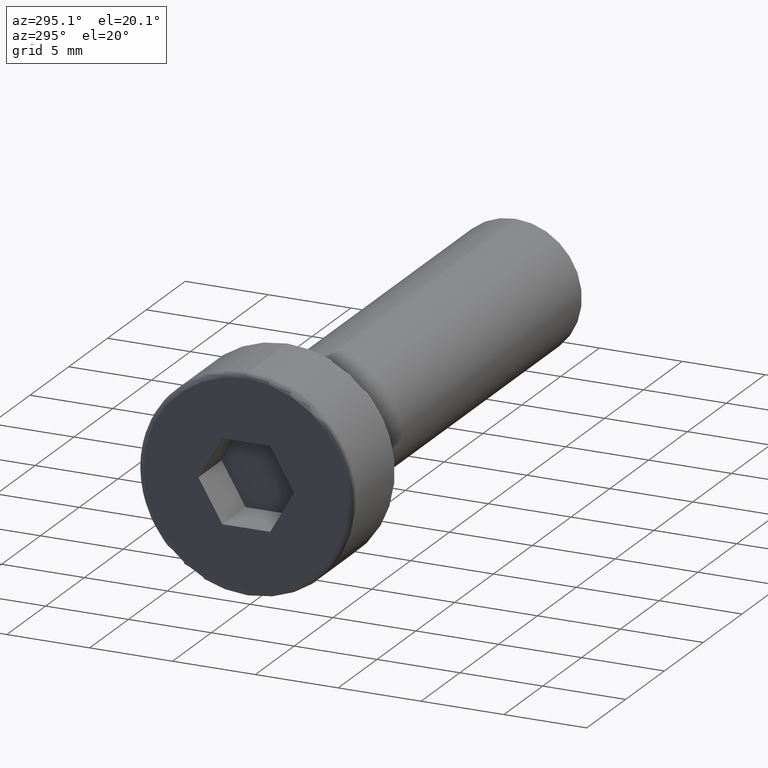
[diagram: clean part render]
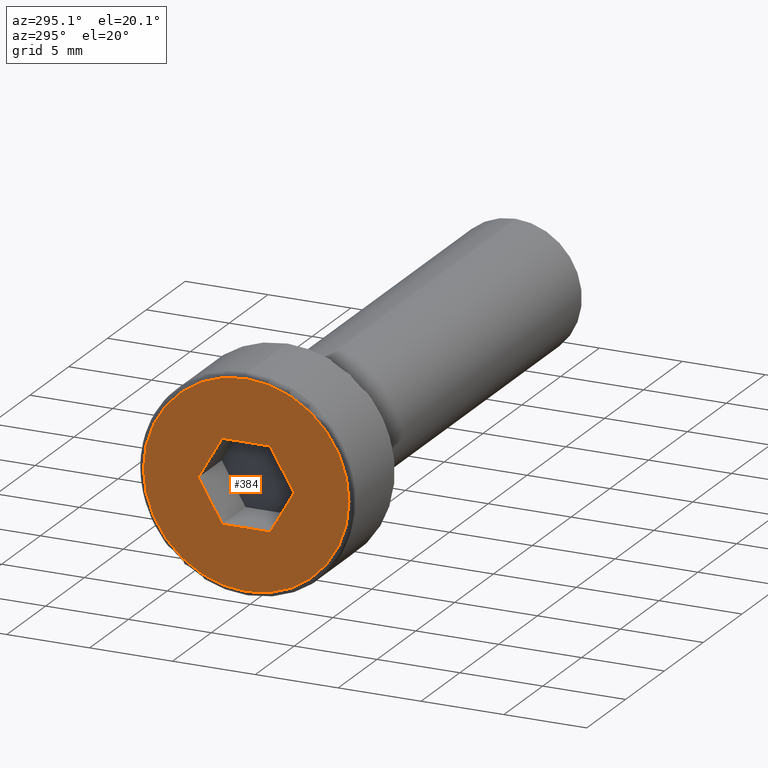
[diagram: same view with one face highlighted and labeled with its STEP entity id]
A machine part, auxiliary view. The second image highlights one B-rep face of the part: STEP entity #384.
In plain terms, the highlighted planar face has unit normal (1, 0, 0).
Its self-contained STEP definition (entity closure, byte-faithful):
#17 = VERTEX_POINT ( 'NONE', #584 ) ;
#23 = ORIENTED_EDGE ( 'NONE', *, *, #220, .T. ) ;
#44 = AXIS2_PLACEMENT_3D ( 'NONE', #458, #88, #518 ) ;
#58 = ORIENTED_EDGE ( 'NONE', *, *, #469, .F. ) ;
#87 = CIRCLE ( 'NONE', #44, 6.199999999999999300 ) ;
#88 = DIRECTION ( 'NONE',  ( -1.000000000000000000, -0.0000000000000000000, -0.0000000000000000000 ) ) ;
#97 = VERTEX_POINT ( 'NONE', #227 ) ;
#107 = VECTOR ( 'NONE', #303, 1000.000000000000100 ) ;
#123 = ORIENTED_EDGE ( 'NONE', *, *, #719, .T. ) ;
#158 = AXIS2_PLACEMENT_3D ( 'NONE', #538, #808, #437 ) ;
#165 = DIRECTION ( 'NONE',  ( -0.0000000000000000000, 1.000000000000000000, -0.0000000000000000000 ) ) ;
#169 = DIRECTION ( 'NONE',  ( -0.0000000000000000000, 0.5000000000000004400, 0.8660254037844382600 ) ) ;
#175 = VECTOR ( 'NONE', #226, 1000.000000000000100 ) ;
#179 = FACE_OUTER_BOUND ( 'NONE', #512, .T. ) ;
#186 = DIRECTION ( 'NONE',  ( 0.0000000000000000000, 0.0000000000000000000, -1.000000000000000000 ) ) ;
#187 = LINE ( 'NONE', #783, #175 ) ;
#205 = VERTEX_POINT ( 'NONE', #383 ) ;
#220 = EDGE_CURVE ( 'NONE', #97, #243, #87, .T. ) ;
#226 = DIRECTION ( 'NONE',  ( -0.0000000000000000000, -0.5000000000000007800, -0.8660254037844381500 ) ) ;
#227 = CARTESIAN_POINT ( 'NONE',  ( -5.500000000000000000, 7.776507174585691200E-016, 6.199999999999999300 ) ) ;
#243 = VERTEX_POINT ( 'NONE', #639 ) ;
#244 = CARTESIAN_POINT ( 'NONE',  ( -5.500000000000000000, 0.0000000000000000000, 0.0000000000000000000 ) ) ;
#287 = LINE ( 'NONE', #422, #769 ) ;
#300 = CARTESIAN_POINT ( 'NONE',  ( -5.500000000000000000, -1.443375672974072800, -2.500000000000013300 ) ) ;
#301 = AXIS2_PLACEMENT_3D ( 'NONE', #244, #320, #186 ) ;
#303 = DIRECTION ( 'NONE',  ( -0.0000000000000000000, -0.4999999999999997200, 0.8660254037844387100 ) ) ;
#308 = EDGE_CURVE ( 'NONE', #733, #535, #517, .T. ) ;
#320 = DIRECTION ( 'NONE',  ( -1.000000000000000000, -0.0000000000000000000, -0.0000000000000000000 ) ) ;
#331 = CARTESIAN_POINT ( 'NONE',  ( -5.500000000000000000, 1.443375672974072300, -2.500000000000013300 ) ) ;
#334 = CARTESIAN_POINT ( 'NONE',  ( -5.500000000000000000, 2.886751345948146900, -8.673617379884035500E-016 ) ) ;
#348 = VECTOR ( 'NONE', #510, 1000.000000000000200 ) ;
#349 = VECTOR ( 'NONE', #540, 1000.000000000000000 ) ;
#351 = ORIENTED_EDGE ( 'NONE', *, *, #770, .F. ) ;
#355 = CARTESIAN_POINT ( 'NONE',  ( -5.500000000000000000, -2.886751345948144600, 8.673617379884035500E-016 ) ) ;
#363 = LINE ( 'NONE', #334, #348 ) ;
#373 = ORIENTED_EDGE ( 'NONE', *, *, #436, .F. ) ;
#382 = CARTESIAN_POINT ( 'NONE',  ( -5.500000000000000000, -1.443375672974071000, 2.500000000000013300 ) ) ;
#383 = CARTESIAN_POINT ( 'NONE',  ( -5.500000000000000000, 2.886751345948146900, -8.673617379884035500E-016 ) ) ;
#384 = ADVANCED_FACE ( 'NONE', ( #479, #179 ), #734, .F. ) ;
#421 = EDGE_LOOP ( 'NONE', ( #373, #608, #457, #622, #351, #58 ) ) ;
#422 = CARTESIAN_POINT ( 'NONE',  ( -5.500000000000000000, -1.443375672974071000, 2.500000000000013300 ) ) ;
#436 = EDGE_CURVE ( 'NONE', #632, #673, #287, .T. ) ;
#437 = DIRECTION ( 'NONE',  ( 0.0000000000000000000, 0.0000000000000000000, -1.000000000000000000 ) ) ;
#439 = LINE ( 'NONE', #355, #107 ) ;
#455 = EDGE_CURVE ( 'NONE', #535, #632, #439, .T. ) ;
#457 = ORIENTED_EDGE ( 'NONE', *, *, #308, .F. ) ;
#458 = CARTESIAN_POINT ( 'NONE',  ( -5.500000000000000000, 0.0000000000000000000, 0.0000000000000000000 ) ) ;
#469 = EDGE_CURVE ( 'NONE', #673, #17, #620, .T. ) ;
#470 = CARTESIAN_POINT ( 'NONE',  ( -5.500000000000000000, -2.886751345948144600, 1.084202172485504400E-015 ) ) ;
#479 = FACE_BOUND ( 'NONE', #421, .T. ) ;
#510 = DIRECTION ( 'NONE',  ( -0.0000000000000000000, 0.5000000000000000000, -0.8660254037844386000 ) ) ;
#512 = EDGE_LOOP ( 'NONE', ( #123, #23 ) ) ;
#517 = LINE ( 'NONE', #595, #349 ) ;
#518 = DIRECTION ( 'NONE',  ( 0.0000000000000000000, 0.0000000000000000000, -1.000000000000000000 ) ) ;
#530 = CIRCLE ( 'NONE', #301, 6.199999999999999300 ) ;
#533 = EDGE_CURVE ( 'NONE', #205, #733, #187, .T. ) ;
#535 = VERTEX_POINT ( 'NONE', #300 ) ;
#538 = CARTESIAN_POINT ( 'NONE',  ( -5.500000000000000000, 0.0000000000000000000, 0.0000000000000000000 ) ) ;
#540 = DIRECTION ( 'NONE',  ( -0.0000000000000000000, -1.000000000000000000, -0.0000000000000000000 ) ) ;
#583 = VECTOR ( 'NONE', #165, 1000.000000000000000 ) ;
#584 = CARTESIAN_POINT ( 'NONE',  ( -5.500000000000000000, 1.443375672974074100, 2.500000000000013300 ) ) ;
#595 = CARTESIAN_POINT ( 'NONE',  ( -5.500000000000000000, -1.443375672974072800, -2.500000000000013300 ) ) ;
#608 = ORIENTED_EDGE ( 'NONE', *, *, #455, .F. ) ;
#620 = LINE ( 'NONE', #623, #583 ) ;
#622 = ORIENTED_EDGE ( 'NONE', *, *, #533, .F. ) ;
#623 = CARTESIAN_POINT ( 'NONE',  ( -5.500000000000000000, 1.443375672974074100, 2.500000000000013300 ) ) ;
#632 = VERTEX_POINT ( 'NONE', #470 ) ;
#639 = CARTESIAN_POINT ( 'NONE',  ( -5.500000000000000000, 0.0000000000000000000, -6.199999999999999300 ) ) ;
#673 = VERTEX_POINT ( 'NONE', #382 ) ;
#719 = EDGE_CURVE ( 'NONE', #243, #97, #530, .T. ) ;
#733 = VERTEX_POINT ( 'NONE', #331 ) ;
#734 = PLANE ( 'NONE',  #158 ) ;
#769 = VECTOR ( 'NONE', #169, 1000.000000000000200 ) ;
#770 = EDGE_CURVE ( 'NONE', #17, #205, #363, .T. ) ;
#783 = CARTESIAN_POINT ( 'NONE',  ( -5.500000000000000000, 1.443375672974072300, -2.500000000000013300 ) ) ;
#808 = DIRECTION ( 'NONE',  ( 1.000000000000000000, 0.0000000000000000000, 0.0000000000000000000 ) ) ;